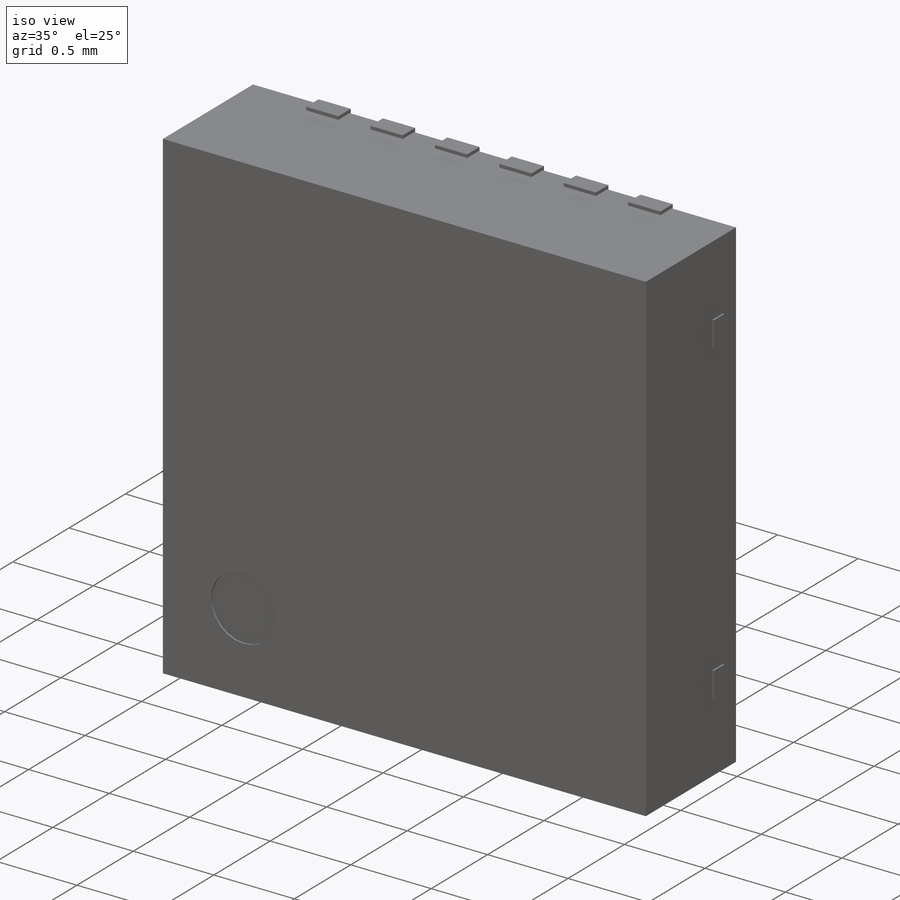
[diagram: iso view]
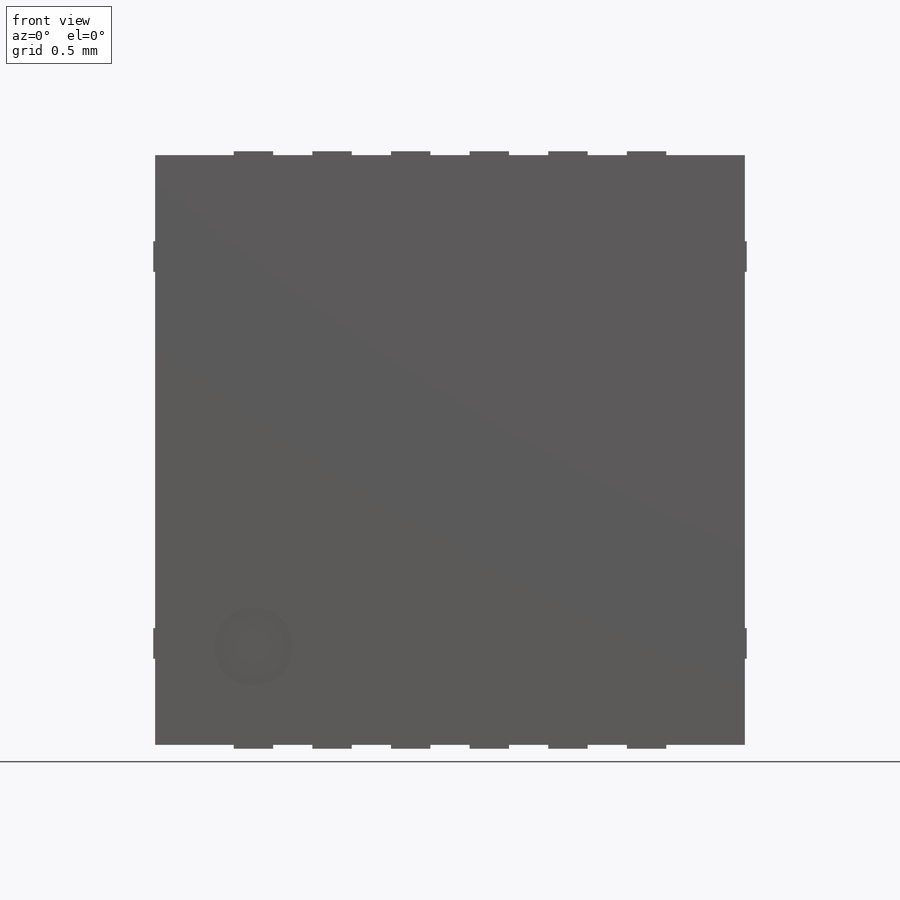
[diagram: front view]
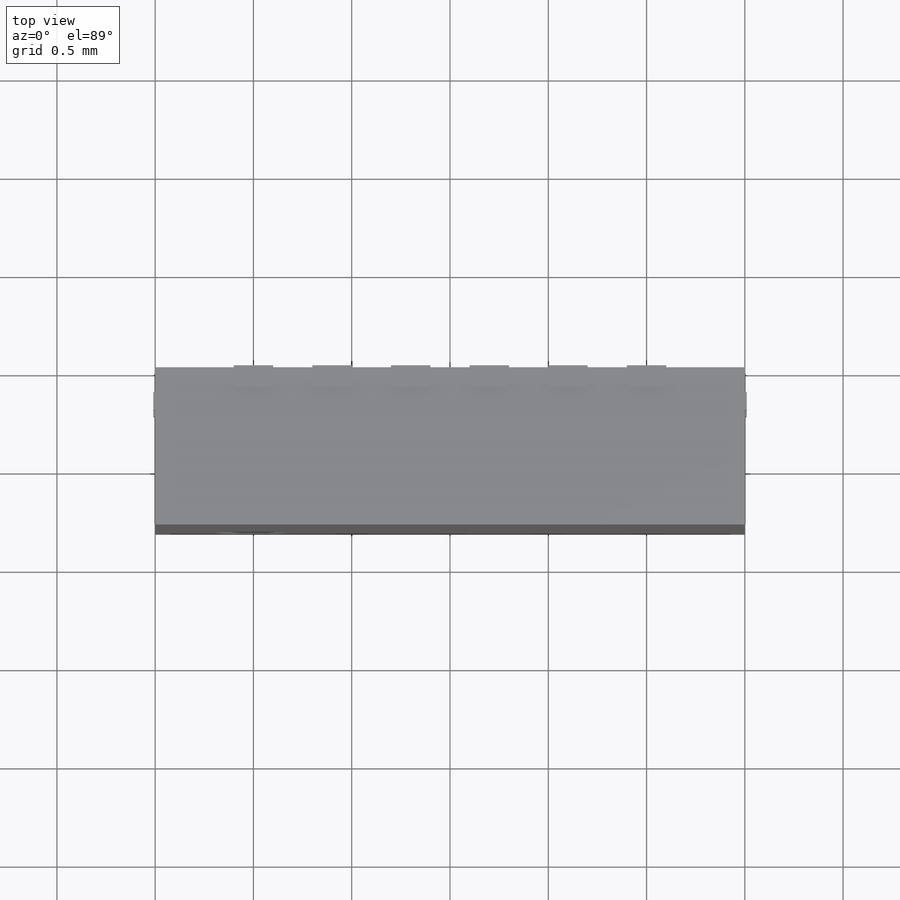
[diagram: top view]
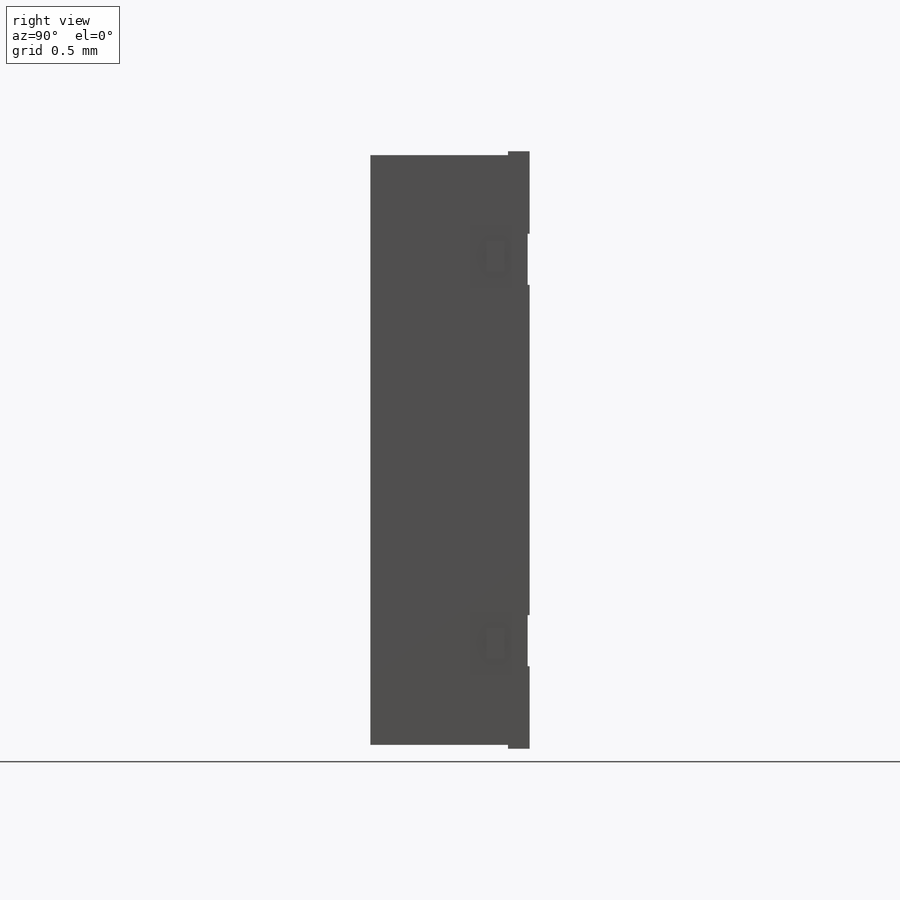
[diagram: right view]
SOLIDWORKS PART (.sldprt)
format: sldprt  version: not decoded by parser v0  size: 231,424 bytes
history: native  units: mm
features: sketch x4, extrude x3, material x1, plane x1, mirror x1, cut_extrude x1 (+16 scaffold rows collapsed)
feature tree (27):
  scaffold x16  (default folders/planes/origin — collapsed)
  material  "Material <not specified>"
  plane  "Plane1"  Offset=0.01mm
  sketch  "Sketch1"
  extrude  "Boss-Extrude1"  Depth=0.8mm
  sketch  "Sketch2"  dims[c1.D1=0.4mm c1.D2=0.25mm c1.D3=45.0deg c2.D1=6.0]
  extrude  "Boss-Extrude2"  Depth=0.11mm
  sketch  "Sketch3"  dims[D1=0.2mm]
  extrude  "Boss-Extrude3"  Depth=0.01mm
  mirror  "Mirror1"
  sketch  "Sketch4"  dims[D1=~0.204348mm]
  cut_extrude  "Cut-Extrude1"  Depth=0.01mm
decode coverage: 7 of 9 modeling features carry decoded parameters
note: ~ marks probable driven/reference dimensions
note: suppression state not decoded; provenance and decode notes live in map.json
